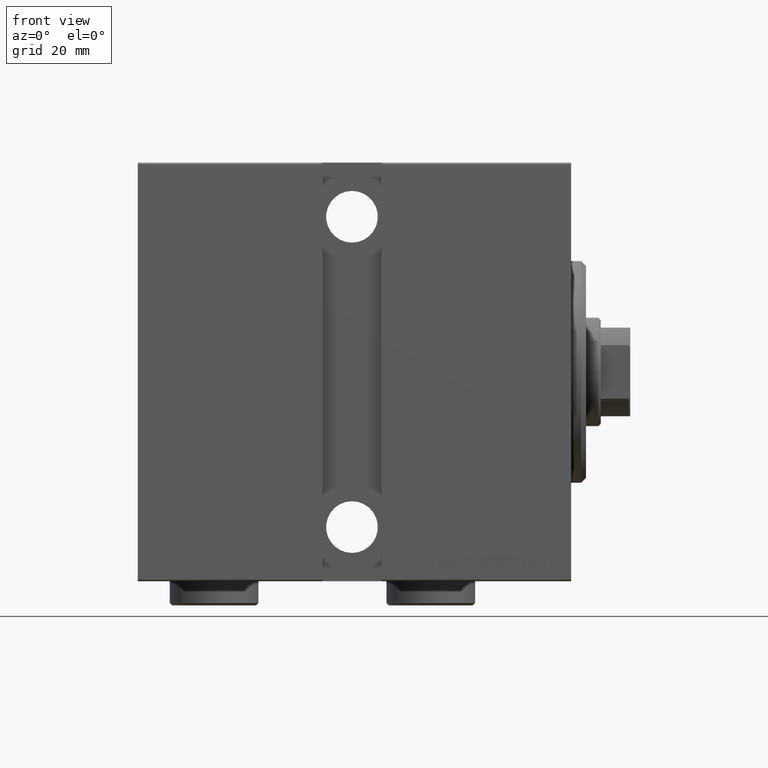
[diagram: clean part render]
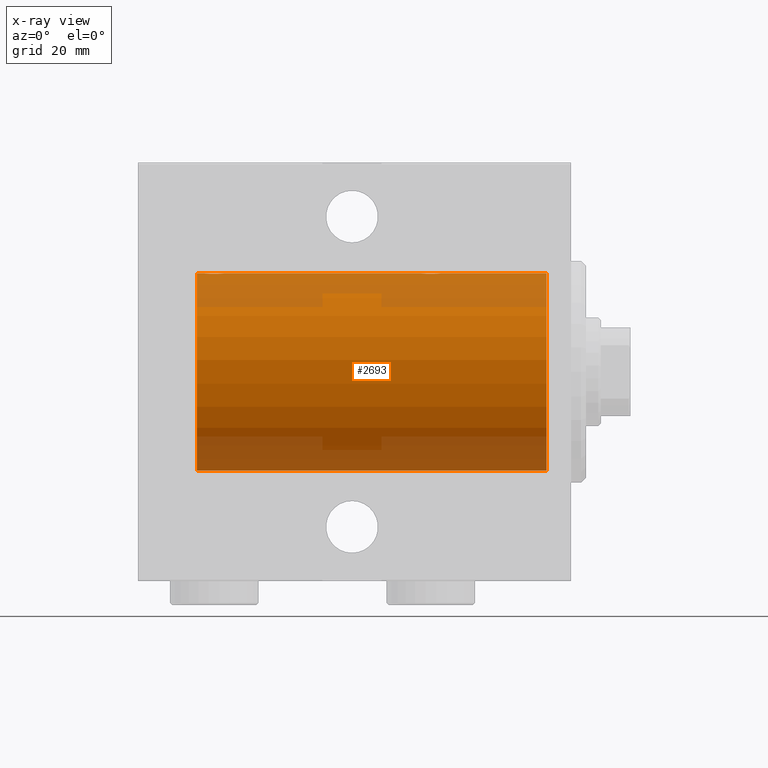
[diagram: x-ray — body ghosted, one internal face saturated and labeled with its STEP entity id]
A machine part, front view, then the same camera in x-ray: the body is ghosted and one INTERNAL B-rep face — a face not visible from any outside direction — is saturated and labeled: STEP entity #2693.
In plain terms, the highlighted cylindrical surface (partial cylindrical patch) has radius 20 mm, axis along (1, 0, -0).
Its self-contained STEP definition (entity closure, byte-faithful):
#577 = CARTESIAN_POINT ( 'NONE',  ( 74.00615770380713343, 1.322305185229304181, 19.95645382900617193 ) ) ;
#805 = CARTESIAN_POINT ( 'NONE',  ( 73.72950112230634545, 1.598854313793176773, 19.93684595445884256 ) ) ;
#1023 = CARTESIAN_POINT ( 'NONE',  ( 71.17939834916164443, 1.507796451871717736, 19.94330239452387943 ) ) ;
#1462 = CARTESIAN_POINT ( 'NONE',  ( 73.50645759073830732, 1.747830109444736602, 19.92373272380677207 ) ) ;
#1509 = DIRECTION ( 'NONE',  ( -1.000000000000000000, 0.000000000000000000, 0.000000000000000000 ) ) ;
#2030 = VECTOR ( 'NONE', #22526, 1000.000000000000000 ) ;
#2693 = ADVANCED_FACE ( 'NONE', ( #16843 ), #6165, .F. ) ;
#3588 = CARTESIAN_POINT ( 'NONE',  ( 5.000000000000004441, 0.000000000000000000, 0.000000000000000000 ) ) ;
#3691 = CARTESIAN_POINT ( 'NONE',  ( 30.23576365127895116, 1.002099838626316464, 19.97517568592526160 ) ) ;
#3717 = ORIENTED_EDGE ( 'NONE', *, *, #15476, .T. ) ;
#3918 = CARTESIAN_POINT ( 'NONE',  ( 28.23758582179997845, 1.987020435121066742, 19.90106552791688799 ) ) ;
#4135 = CARTESIAN_POINT ( 'NONE',  ( 30.43615228383327320, 0.5179893069484664547, 19.99370013622814568 ) ) ;
#4151 = CARTESIAN_POINT ( 'NONE',  ( 70.90992932310328456, 1.220099331833891743, 19.96304379627741454 ) ) ;
#4585 = CARTESIAN_POINT ( 'NONE',  ( 26.50000000000000355, -1.552596590610734385E-23, 20.00000000000000000 ) ) ;
#4594 = CARTESIAN_POINT ( 'NONE',  ( 72.23758582180001042, 1.987020435121064521, 19.90106552791689154 ) ) ;
#4809 = CARTESIAN_POINT ( 'NONE',  ( 74.50000000000001421, 1.179655747245154047E-15, 20.00000000000000000 ) ) ;
#5157 = DIRECTION ( 'NONE',  ( -1.000000000000000000, -0.000000000000000000, -0.000000000000000000 ) ) ;
#5400 = LINE ( 'NONE', #32779, #2030 ) ;
#6165 = CYLINDRICAL_SURFACE ( 'NONE', #42849, 20.00000000000000000 ) ;
#6887 = VERTEX_POINT ( 'NONE', #24878 ) ;
#7027 = CARTESIAN_POINT ( 'NONE',  ( 30.48701494615325203, 0.2622407139811169796, 19.99868965376115071 ) ) ;
#7257 = CARTESIAN_POINT ( 'NONE',  ( 27.61403810544162951, 1.797847595792755770, 19.91909332229799290 ) ) ;
#7268 = CARTESIAN_POINT ( 'NONE',  ( 74.50000000000001421, 0.1322335637814731901, 20.00000000000000000 ) ) ;
#7312 = CARTESIAN_POINT ( 'NONE',  ( 5.000000000000004441, 0.000000000000000000, 20.00000000000000000 ) ) ;
#7492 = CARTESIAN_POINT ( 'NONE',  ( 74.48701494615326624, 0.2622407139811093191, 19.99868965376115426 ) ) ;
#7921 = CARTESIAN_POINT ( 'NONE',  ( 28.37018818709292844, 2.000047251570879148, 19.89974399317114617 ) ) ;
#7930 = CARTESIAN_POINT ( 'NONE',  ( 73.02513908455000546, 1.947330458682945187, 19.90522393307485061 ) ) ;
#8497 = CARTESIAN_POINT ( 'NONE',  ( 76.00000000000000000, 0.000000000000000000, 20.00000000000000000 ) ) ;
#10819 = CARTESIAN_POINT ( 'NONE',  ( 71.85628869360149906, 1.898109641280497639, 19.90978941500366872 ) ) ;
#11036 = CARTESIAN_POINT ( 'NONE',  ( 29.02513908454998059, 1.947330458682949850, 19.90522393307484705 ) ) ;
#11252 = CARTESIAN_POINT ( 'NONE',  ( 30.29721343056696270, 0.8872481584516771491, 19.98067755938510004 ) ) ;
#11264 = CARTESIAN_POINT ( 'NONE',  ( 70.51308707988555113, 0.2631998640366408626, 19.99867931558986456 ) ) ;
#11480 = CARTESIAN_POINT ( 'NONE',  ( 30.49999999999997868, 0.1322335637814716913, 19.99999999999999645 ) ) ;
#11625 = CARTESIAN_POINT ( 'NONE',  ( 70.50000000000000000, -1.553188236289650144E-23, 20.00000000000000000 ) ) ;
#12003 = ORIENTED_EDGE ( 'NONE', *, *, #17658, .T. ) ;
#12936 = CARTESIAN_POINT ( 'NONE',  ( 76.00000000000000000, 0.000000000000000000, 20.00000000000000000 ) ) ;
#13735 = DIRECTION ( 'NONE',  ( 0.000000000000000000, 0.000000000000000000, 1.000000000000000000 ) ) ;
#14177 = CARTESIAN_POINT ( 'NONE',  ( 74.23576365127897247, 1.002099838626307138, 19.97517568592526516 ) ) ;
#14391 = CARTESIAN_POINT ( 'NONE',  ( 26.99261358456011095, 1.321069663197662836, 19.95654117037011588 ) ) ;
#14622 = CARTESIAN_POINT ( 'NONE',  ( 70.60210312641140717, 0.6443418861413057197, 19.98998539619404369 ) ) ;
#15111 = DIRECTION ( 'NONE',  ( 0.000000000000000000, 0.000000000000000000, 1.000000000000000000 ) ) ;
#15476 = EDGE_CURVE ( 'NONE', #32295, #6887, #43321, .T. ) ;
#16803 = CIRCLE ( 'NONE', #18230, 20.00000000000000000 ) ;
#16843 = FACE_OUTER_BOUND ( 'NONE', #28919, .T. ) ;
#17280 = CARTESIAN_POINT ( 'NONE',  ( 27.28039724650255948, 1.590453176650909350, 19.93679350243183634 ) ) ;
#17618 = DIRECTION ( 'NONE',  ( 0.000000000000000000, 0.000000000000000000, 1.000000000000000000 ) ) ;
#17658 = EDGE_CURVE ( 'NONE', #43994, #28682, #33156, .T. ) ;
#17724 = CARTESIAN_POINT ( 'NONE',  ( 28.76180153897437819, 1.999905101582717171, 19.89975827978156531 ) ) ;
#17943 = CARTESIAN_POINT ( 'NONE',  ( 30.00615770380712632, 1.322305185229308844, 19.95645382900617193 ) ) ;
#17952 = CARTESIAN_POINT ( 'NONE',  ( 72.37018818709296397, 2.000047251570878259, 19.89974399317116038 ) ) ;
#18105 = EDGE_CURVE ( 'NONE', #24230, #42266, #16803, .T. ) ;
#18170 = CARTESIAN_POINT ( 'NONE',  ( 71.49702773215048524, 1.735228749583821672, 19.92471474456648650 ) ) ;
#18230 = AXIS2_PLACEMENT_3D ( 'NONE', #31784, #1509, #15111 ) ;
#18346 = DIRECTION ( 'NONE',  ( -1.000000000000000000, -0.000000000000000000, -0.000000000000000000 ) ) ;
#18519 = LINE ( 'NONE', #8497, #39108 ) ;
#19038 = EDGE_CURVE ( 'NONE', #42266, #28682, #32801, .T. ) ;
#19075 = B_SPLINE_CURVE_WITH_KNOTS ( 'NONE', 3,
 ( #4809, #7268, #7492, #24613, #38421, #31298, #14177, #20838, #577, #805, #1462, #7930, #34417, #17952, #4594, #28619, #10819, #31517, #18170, #21055, #1023, #34638, #4151, #38199, #34861, #14622, #41765, #11264, #24831, #21495 ),
 .UNSPECIFIED., .F., .F.,
 ( 4, 2, 2, 2, 2, 2, 2, 2, 2, 2, 2, 2, 2, 2, 4 ),
 ( 1.146295712831832348E-18, 0.0003910512220831368810, 0.0007821024441662726779, 0.001173153666249408420, 0.001564204888332544055, 0.002346307332498786917, 0.003128409776665029562, 0.003519460998748130502, 0.003910512220831229707, 0.004301563442914330647, 0.004692614664997430719, 0.005083665887080530792, 0.005474717109163631731, 0.005865768331246731804, 0.006256819553329832743 ),
 .UNSPECIFIED. ) ;
#19539 = ORIENTED_EDGE ( 'NONE', *, *, #19038, .F. ) ;
#19877 = CARTESIAN_POINT ( 'NONE',  ( 30.50000000000000000, -3.987914257189907626E-15, 20.00000000000000000 ) ) ;
#20669 = ORIENTED_EDGE ( 'NONE', *, *, #37266, .T. ) ;
#20826 = CARTESIAN_POINT ( 'NONE',  ( 26.90992932310325969, 1.220099331833889966, 19.96304379627741099 ) ) ;
#20838 = CARTESIAN_POINT ( 'NONE',  ( 74.09059733457554842, 1.219458756546261791, 19.96308513509966787 ) ) ;
#21055 = CARTESIAN_POINT ( 'NONE',  ( 71.28039724650254527, 1.590453176650904910, 19.93679350243183990 ) ) ;
#21495 = CARTESIAN_POINT ( 'NONE',  ( 70.50000000000000000, -1.553188236289650144E-23, 20.00000000000000000 ) ) ;
#21835 = VERTEX_POINT ( 'NONE', #25904 ) ;
#22476 = AXIS2_PLACEMENT_3D ( 'NONE', #3588, #34517, #17618 ) ;
#22526 = DIRECTION ( 'NONE',  ( -1.000000000000000000, -0.000000000000000000, -0.000000000000000000 ) ) ;
#23144 = DIRECTION ( 'NONE',  ( -1.000000000000000000, -0.000000000000000000, -0.000000000000000000 ) ) ;
#24158 = CARTESIAN_POINT ( 'NONE',  ( 30.50000000000000000, -3.987914257189907626E-15, 20.00000000000000000 ) ) ;
#24230 = VERTEX_POINT ( 'NONE', #25356 ) ;
#24384 = CARTESIAN_POINT ( 'NONE',  ( 26.76510545398016205, 1.003547732426798955, 19.97510079925437054 ) ) ;
#24613 = CARTESIAN_POINT ( 'NONE',  ( 74.43615228383329452, 0.5179893069484606816, 19.99370013622814568 ) ) ;
#24831 = CARTESIAN_POINT ( 'NONE',  ( 70.50000000000004263, 0.1305706983324428083, 20.00000000000000355 ) ) ;
#24878 = CARTESIAN_POINT ( 'NONE',  ( 26.50000000000000355, -1.552596590610734385E-23, 20.00000000000000000 ) ) ;
#25039 = CARTESIAN_POINT ( 'NONE',  ( 26.60210312641135033, 0.6443418861413082732, 19.98998539619404013 ) ) ;
#25356 = CARTESIAN_POINT ( 'NONE',  ( 76.00000000000000000, 0.000000000000000000, 20.00000000000000000 ) ) ;
#25904 = CARTESIAN_POINT ( 'NONE',  ( 74.50000000000001421, 1.179655747245154047E-15, 20.00000000000000000 ) ) ;
#27491 = CARTESIAN_POINT ( 'NONE',  ( 27.17939834916165509, 1.507796451871719734, 19.94330239452387588 ) ) ;
#27942 = CARTESIAN_POINT ( 'NONE',  ( 27.85628869360148840, 1.898109641280496085, 19.90978941500366872 ) ) ;
#28389 = CARTESIAN_POINT ( 'NONE',  ( 26.50000000000000000, 0.1305706983324424475, 20.00000000000000355 ) ) ;
#28619 = CARTESIAN_POINT ( 'NONE',  ( 71.98100525813890727, 1.935912154109689531, 19.90610216711451130 ) ) ;
#28682 = VERTEX_POINT ( 'NONE', #29868 ) ;
#28919 = EDGE_LOOP ( 'NONE', ( #19539, #42642, #43866, #41709, #20669, #3717, #29138, #12003 ) ) ;
#29138 = ORIENTED_EDGE ( 'NONE', *, *, #41880, .T. ) ;
#29540 = EDGE_CURVE ( 'NONE', #21835, #31573, #19075, .T. ) ;
#29868 = CARTESIAN_POINT ( 'NONE',  ( 5.000000000000004441, 2.449293598294706513E-15, -20.00000000000000000 ) ) ;
#30402 = DIRECTION ( 'NONE',  ( -1.000000000000000000, -0.000000000000000000, -0.000000000000000000 ) ) ;
#31298 = CARTESIAN_POINT ( 'NONE',  ( 74.29721343056698402, 0.8872481584516744846, 19.98067755938509649 ) ) ;
#31505 = CARTESIAN_POINT ( 'NONE',  ( 29.50645759073829311, 1.747830109444741042, 19.92373272380676852 ) ) ;
#31517 = CARTESIAN_POINT ( 'NONE',  ( 71.61403810544166504, 1.797847595792759323, 19.91909332229798935 ) ) ;
#31573 = VERTEX_POINT ( 'NONE', #11625 ) ;
#31784 = CARTESIAN_POINT ( 'NONE',  ( 76.00000000000000000, 0.000000000000000000, 0.000000000000000000 ) ) ;
#32295 = VERTEX_POINT ( 'NONE', #19877 ) ;
#32779 = CARTESIAN_POINT ( 'NONE',  ( 76.00000000000000000, 0.000000000000000000, 20.00000000000000000 ) ) ;
#32801 = LINE ( 'NONE', #43048, #39571 ) ;
#33156 = CIRCLE ( 'NONE', #22476, 20.00000000000000000 ) ;
#33326 = VECTOR ( 'NONE', #23144, 1000.000000000000000 ) ;
#33338 = CARTESIAN_POINT ( 'NONE',  ( 76.00000000000000000, 2.449293598294706513E-15, -20.00000000000000000 ) ) ;
#34184 = CARTESIAN_POINT ( 'NONE',  ( 30.09059733457551289, 1.219458756546269784, 19.96308513509966431 ) ) ;
#34407 = CARTESIAN_POINT ( 'NONE',  ( 26.51308707988552626, 0.2631998640366420283, 19.99867931558985390 ) ) ;
#34417 = CARTESIAN_POINT ( 'NONE',  ( 72.76180153897439595, 1.999905101582713396, 19.89975827978156531 ) ) ;
#34517 = DIRECTION ( 'NONE',  ( -1.000000000000000000, 0.000000000000000000, 0.000000000000000000 ) ) ;
#34618 = EDGE_CURVE ( 'NONE', #24230, #21835, #39417, .T. ) ;
#34638 = CARTESIAN_POINT ( 'NONE',  ( 70.99261358456014648, 1.321069663197660837, 19.95654117037011943 ) ) ;
#34861 = CARTESIAN_POINT ( 'NONE',  ( 70.70246098872841856, 0.8865903856744251632, 19.98070694681040038 ) ) ;
#35070 = CARTESIAN_POINT ( 'NONE',  ( 26.56426851132707867, 0.5196544277756658392, 19.99365919015135873 ) ) ;
#37266 = EDGE_CURVE ( 'NONE', #31573, #32295, #5400, .T. ) ;
#37741 = CARTESIAN_POINT ( 'NONE',  ( 29.72950112230633835, 1.598854313793181658, 19.93684595445884966 ) ) ;
#38189 = CARTESIAN_POINT ( 'NONE',  ( 27.49702773215046392, 1.735228749583825003, 19.92471474456648650 ) ) ;
#38199 = CARTESIAN_POINT ( 'NONE',  ( 70.76510545398019758, 1.003547732426800065, 19.97510079925437765 ) ) ;
#38421 = CARTESIAN_POINT ( 'NONE',  ( 74.39765113166075139, 0.6450624715427611955, 19.98996196681220638 ) ) ;
#39108 = VECTOR ( 'NONE', #5157, 1000.000000000000000 ) ;
#39417 = LINE ( 'NONE', #12936, #33326 ) ;
#39571 = VECTOR ( 'NONE', #18346, 1000.000000000000000 ) ;
#41312 = CARTESIAN_POINT ( 'NONE',  ( 26.70246098872837237, 0.8865903856744267175, 19.98070694681038972 ) ) ;
#41532 = CARTESIAN_POINT ( 'NONE',  ( 30.39765113166073363, 0.6450624715427637490, 19.98996196681219928 ) ) ;
#41709 = ORIENTED_EDGE ( 'NONE', *, *, #29540, .T. ) ;
#41765 = CARTESIAN_POINT ( 'NONE',  ( 70.56426851132711420, 0.5196544277756652841, 19.99365919015135873 ) ) ;
#41880 = EDGE_CURVE ( 'NONE', #6887, #43994, #18519, .T. ) ;
#41979 = CARTESIAN_POINT ( 'NONE',  ( 27.98100525813888595, 1.935912154109690198, 19.90610216711450775 ) ) ;
#42266 = VERTEX_POINT ( 'NONE', #33338 ) ;
#42642 = ORIENTED_EDGE ( 'NONE', *, *, #18105, .F. ) ;
#42849 = AXIS2_PLACEMENT_3D ( 'NONE', #43780, #30402, #13735 ) ;
#43048 = CARTESIAN_POINT ( 'NONE',  ( 76.00000000000000000, 2.449293598294706513E-15, -20.00000000000000000 ) ) ;
#43321 = B_SPLINE_CURVE_WITH_KNOTS ( 'NONE', 3,
 ( #24158, #11480, #7027, #4135, #41532, #11252, #3691, #34184, #17943, #37741, #31505, #11036, #17724, #7921, #3918, #41979, #27942, #7257, #38189, #17280, #27491, #14391, #20826, #24384, #41312, #25039, #35070, #34407, #28389, #4585 ),
 .UNSPECIFIED., .F., .F.,
 ( 4, 2, 2, 2, 2, 2, 2, 2, 2, 2, 2, 2, 2, 2, 4 ),
 ( 6.737296076284884849E-18, 0.0003910512220831210517, 0.0007821024441662353813, 0.001173153666249349657, 0.001564204888332464041, 0.002346307332498693676, 0.003128409776664922877, 0.003519460998748032490, 0.003910512220831142104, 0.004301563442914251717, 0.004692614664997360463, 0.005083665887080470944, 0.005474717109163579690, 0.005865768331246689303, 0.006256819553329798916 ),
 .UNSPECIFIED. ) ;
#43780 = CARTESIAN_POINT ( 'NONE',  ( 76.00000000000000000, 0.000000000000000000, 0.000000000000000000 ) ) ;
#43866 = ORIENTED_EDGE ( 'NONE', *, *, #34618, .T. ) ;
#43994 = VERTEX_POINT ( 'NONE', #7312 ) ;